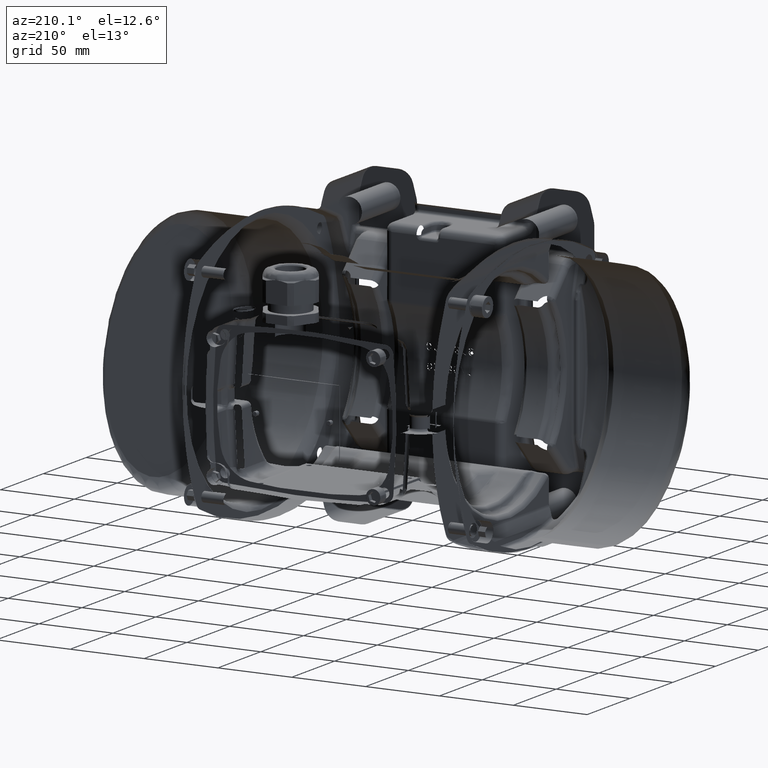
[diagram: clean part render]
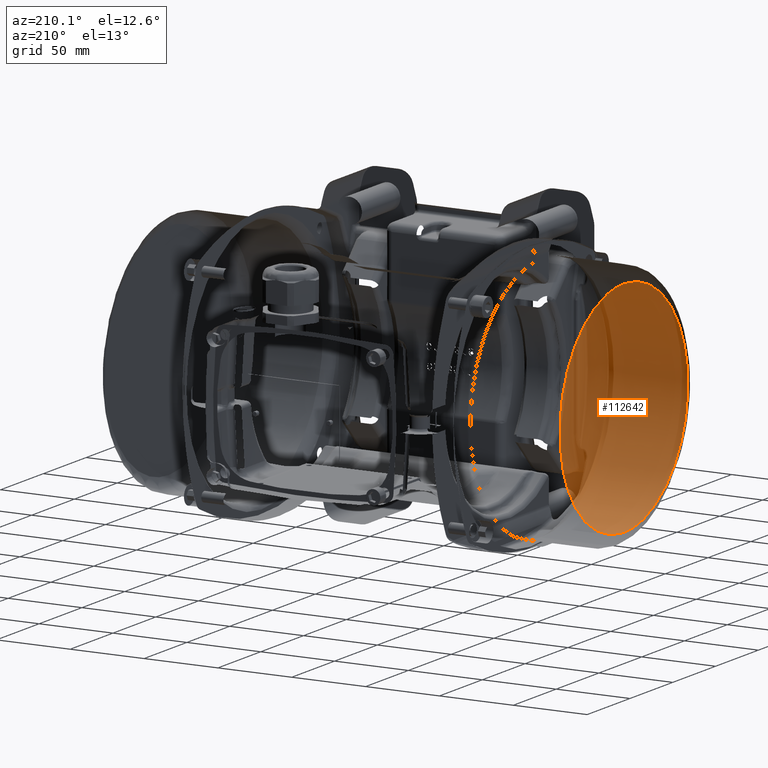
[diagram: same view with one face highlighted and labeled with its STEP entity id]
A machine part, auxiliary view. The second image highlights one B-rep face of the part: STEP entity #112642.
In plain terms, the highlighted planar face has unit normal (1, -0, 0).
Its self-contained STEP definition (entity closure, byte-faithful):
#6596 = CARTESIAN_POINT ( 'NONE',  ( -150.3471756244535100, -43.57026878890045700, 61.44428219647824800 ) ) ;
#7482 = CARTESIAN_POINT ( 'NONE',  ( -150.3471756244534600, -34.13444421374722300, -67.02876972792424200 ) ) ;
#7990 = CARTESIAN_POINT ( 'NONE',  ( -150.3471756244534600, 73.62789687501116000, 2.480561451402226900 ) ) ;
#8445 = CARTESIAN_POINT ( 'NONE',  ( -150.3471756244534800, 15.90446758656009200, -72.78669528399093700 ) ) ;
#8864 = CARTESIAN_POINT ( 'NONE',  ( -150.3471756244534800, 22.93351098219302000, 70.78033564868863400 ) ) ;
#8911 = CARTESIAN_POINT ( 'NONE',  ( -150.3471756244534300, 62.40976491365351800, -39.44945388104909500 ) ) ;
#9286 = CARTESIAN_POINT ( 'NONE',  ( -150.3471756244535100, -27.40696877252584000, -69.94632381857914500 ) ) ;
#9759 = CARTESIAN_POINT ( 'NONE',  ( -150.3471756244535100, 15.88623668802642500, 72.79083527223660600 ) ) ;
#15699 = CARTESIAN_POINT ( 'NONE',  ( -150.3471756244535100, -13.23460183251267900, 73.74355082529793000 ) ) ;
#16135 = CARTESIAN_POINT ( 'NONE',  ( -150.3471756244535400, -61.80640505935817000, 43.55766305996982600 ) ) ;
#16580 = CARTESIAN_POINT ( 'NONE',  ( -150.3471756244535700, -57.24808075905810500, 49.29716506628857100 ) ) ;
#17036 = CARTESIAN_POINT ( 'NONE',  ( -150.3471756244535700, -31.89125480895147600, 68.08930144735957400 ) ) ;
#18001 = CARTESIAN_POINT ( 'NONE',  ( -150.3471756244534800, 25.26490478286153900, -69.94629435113029100 ) ) ;
#18900 = CARTESIAN_POINT ( 'NONE',  ( -150.3471756244535100, 42.47374251493305800, -60.74474185799483900 ) ) ;
#19347 = CARTESIAN_POINT ( 'NONE',  ( -150.3471756244535100, 73.50675934830717000, 4.921631787828156100 ) ) ;
#20218 = CARTESIAN_POINT ( 'NONE',  ( -150.3471756244534800, -1.071020629450054200, 74.70000019073479800 ) ) ;
#23927 = ORIENTED_EDGE ( 'NONE', *, *, #30159, .T. ) ;
#27042 = CARTESIAN_POINT ( 'NONE',  ( -150.3471756244535100, -3.515160993677671500, 74.69996439014153100 ) ) ;
#27485 = CARTESIAN_POINT ( 'NONE',  ( -150.3471756244534600, -71.85260607888295700, -24.00033018609266500 ) ) ;
#27940 = CARTESIAN_POINT ( 'NONE',  ( -150.3471756244535100, -25.07619180655780900, 70.78017921209715300 ) ) ;
#28393 = CARTESIAN_POINT ( 'NONE',  ( -150.3471756244534800, -38.45349402382608900, -64.71932841074591600 ) ) ;
#28466 = CARTESIAN_POINT ( 'NONE',  ( -150.3471756244534800, 71.13050600664608700, -19.31296322747903800 ) ) ;
#28842 = CARTESIAN_POINT ( 'NONE',  ( -150.3471756244534800, -50.36463991996734500, -56.17988753662083200 ) ) ;
#28911 = CARTESIAN_POINT ( 'NONE',  ( -150.3471756244534600, 71.70750837600334600, 17.00969958026446300 ) ) ;
#30159 = EDGE_CURVE ( 'NONE', #122591, #76105, #45014, .T. ) ;
#33268 = CARTESIAN_POINT ( 'NONE',  ( -150.3471756244535100, 62.38081776108886300, 39.49583255524552100 ) ) ;
#36586 = CARTESIAN_POINT ( 'NONE',  ( -150.3471756244535400, -64.52283004988642300, 39.49594026374076300 ) ) ;
#37477 = CARTESIAN_POINT ( 'NONE',  ( -150.3471756244535100, -75.65314359812141700, -4.851369600473231200 ) ) ;
#37934 = CARTESIAN_POINT ( 'NONE',  ( -150.3471756244534800, -69.16016264045437400, -30.82106798906794200 ) ) ;
#38372 = CARTESIAN_POINT ( 'NONE',  ( -150.3471756244535400, -40.52063307612296900, 63.48063486553305500 ) ) ;
#38811 = CARTESIAN_POINT ( 'NONE',  ( -150.3471756244534600, -61.83639488033547600, -43.51597630048426900 ) ) ;
#38881 = CARTESIAN_POINT ( 'NONE',  ( -150.3471756244534800, 36.31148063656019100, -64.71935411461478800 ) ) ;
#39346 = CARTESIAN_POINT ( 'NONE',  ( -150.3471756244535100, 72.67562640127741200, -12.14486029854084300 ) ) ;
#40169 = CARTESIAN_POINT ( 'NONE',  ( -150.3471756244534600, -57.27428056434657600, -49.26702425271556500 ) ) ;
#40197 = CARTESIAN_POINT ( 'NONE',  ( -150.3471756244535100, 18.25494012237277600, 72.19808291103638000 ) ) ;
#40235 = CARTESIAN_POINT ( 'NONE',  ( -150.3471756244535100, 29.78230061309247700, -68.07453806243849200 ) ) ;
#40677 = CARTESIAN_POINT ( 'NONE',  ( -150.3471756244534800, 50.03394123603269600, -54.53758354772094200 ) ) ;
#41697 = CARTESIAN_POINT ( 'NONE',  ( -150.3471756244534800, 29.74813433049493100, 68.08970931772142900 ) ) ;
#42002 = CARTESIAN_POINT ( 'NONE',  ( -150.3471756244535400, 3.811914087777475300, 74.58028043652004200 ) ) ;
#44292 = AXIS2_PLACEMENT_3D ( 'NONE', #97815, #108710, #67054 ) ;
#45014 = B_SPLINE_CURVE_WITH_KNOTS ( 'NONE', 3,
 ( #59752, #102733, #122700, #102282, #80085, #8445, #121804, #59306, #18001, #40235, #131756, #38881, #133546, #18900, #91399, #81430, #40677, #48914, #60642, #132206, #100938, #8911, #133086, #61092, #71502, #69717, #121357, #28466, #111400, #39346, #49365, #71055, #70168, #7990, #19347, #91854, #80526, #28911, #132641, #101391, #111836, #60198, #130761, #61433, #33268, #98884, #60831, #106502, #117830, #99623, #91423, #55164, #120779, #93079, #66772, #76248, #64594, #120970, #41697, #108443, #8864, #40197, #9759, #82282, #82723, #42002, #83185, #20218 ),
 .UNSPECIFIED., .F., .F.,
 ( 4, 2, 2, 2, 2, 2, 2, 2, 2, 2, 2, 2, 2, 2, 2, 2, 2, 2, 2, 2, 2, 2, 2, 2, 2, 2, 2, 2, 2, 2, 2, 2, 2, 4 ),
 ( 0.0000000000000000000, 0.03125000000000002800, 0.06250000000000004200, 0.09375000000000004200, 0.1250000000000000300, 0.1562500000000000300, 0.1875000000000000300, 0.2187500000000000300, 0.2500000000000000000, 0.2812500000000000000, 0.3125000000000000000, 0.3437500000000000000, 0.3750000000000000600, 0.4062500000000000000, 0.4375000000000000600, 0.4687500000000000600, 0.5000000000000001100, 0.5312500000000001100, 0.5625000000000001100, 0.5937500000000002200, 0.6250000000000002200, 0.6562500000000002200, 0.6875000000000002200, 0.7187500000000003300, 0.7500000000000003300, 0.7812500000000003300, 0.8125000000000003300, 0.8281250000000004400, 0.8437500000000004400, 0.8750000000000003300, 0.9062500000000002200, 0.9375000000000001100, 0.9687500000000001100, 1.000000000000000000 ),
 .UNSPECIFIED. ) ;
#47936 = CARTESIAN_POINT ( 'NONE',  ( -150.3471756244535700, -38.42233523442745700, 64.73722334729551200 ) ) ;
#48381 = CARTESIAN_POINT ( 'NONE',  ( -150.3471756244535100, -47.49981030961942700, 58.53105112242233300 ) ) ;
#48841 = CARTESIAN_POINT ( 'NONE',  ( -150.3471756244534800, -46.53374875836494300, 59.28474089386366300 ) ) ;
#48914 = CARTESIAN_POINT ( 'NONE',  ( -150.3471756244534600, 53.49078334486332400, -51.07915144214247500 ) ) ;
#49365 = CARTESIAN_POINT ( 'NONE',  ( -150.3471756244534800, 73.03322121015371200, -9.725821502165466400 ) ) ;
#50170 = CARTESIAN_POINT ( 'NONE',  ( -150.3471756244534600, -40.55054139748417400, -63.46209823550363900 ) ) ;
#55164 = CARTESIAN_POINT ( 'NONE',  ( -150.3471756244534600, 44.40952597864559700, 59.30894314932682900 ) ) ;
#57066 = PLANE ( 'NONE',  #44292 ) ;
#57733 = FACE_OUTER_BOUND ( 'NONE', #124854, .T. ) ;
#57890 = CARTESIAN_POINT ( 'NONE',  ( -150.3471756244535400, -73.25376232066442100, 19.38165066433619500 ) ) ;
#58334 = CARTESIAN_POINT ( 'NONE',  ( -150.3471756244534600, -73.86578231811303400, -16.94098133061920200 ) ) ;
#58789 = CARTESIAN_POINT ( 'NONE',  ( -150.3471756244535400, -69.13159568833852100, 30.88445766976616000 ) ) ;
#59306 = CARTESIAN_POINT ( 'NONE',  ( -150.3471756244534300, 22.96287437127685700, -70.77017732494479700 ) ) ;
#59752 = CARTESIAN_POINT ( 'NONE',  ( -150.3471756244534800, -1.071020629450024000, -74.70000019073499700 ) ) ;
#60125 = CARTESIAN_POINT ( 'NONE',  ( -150.3471756244535100, -65.80806727870070500, -37.35183619289406900 ) ) ;
#60162 = CARTESIAN_POINT ( 'NONE',  ( -150.3471756244534800, -1.071020629450054200, 74.70000019073479800 ) ) ;
#60198 = CARTESIAN_POINT ( 'NONE',  ( -150.3471756244534600, 66.99004128235439700, 30.88337758961602500 ) ) ;
#60642 = CARTESIAN_POINT ( 'NONE',  ( -150.3471756244534600, 55.13219235608240600, -49.26702502662043800 ) ) ;
#60831 = CARTESIAN_POINT ( 'NONE',  ( -150.3471756244534600, 58.20914995928582400, 45.51832767532319200 ) ) ;
#61031 = CARTESIAN_POINT ( 'NONE',  ( -150.3471756244534800, -10.83195723834246300, -74.09968913117245400 ) ) ;
#61092 = CARTESIAN_POINT ( 'NONE',  ( -150.3471756244534800, 65.97339832806120800, -33.03166230047850900 ) ) ;
#61433 = CARTESIAN_POINT ( 'NONE',  ( -150.3471756244534600, 63.63723654337764700, 37.40185967683103700 ) ) ;
#61469 = CARTESIAN_POINT ( 'NONE',  ( -150.3471756244534600, -52.17602359317734100, -54.53759324581546500 ) ) ;
#64594 = CARTESIAN_POINT ( 'NONE',  ( -150.3471756244535100, 35.19841938277340200, 65.31494802914775700 ) ) ;
#64688 = B_SPLINE_CURVE_WITH_KNOTS ( 'NONE', 3,
 ( #89988, #27042, #79112, #78221, #15699, #109092, #98631, #27940, #120844, #17036, #77781, #47936, #38372, #6596, #110887, #48841, #48381, #130800, #131238, #78675, #16580, #121293, #16135, #36586, #120400, #88640, #58789, #89539, #130353, #57890, #129902, #69196, #99075, #88203, #119944, #99530, #37477, #89085, #109980, #58334, #68753, #27485, #99968, #37934, #133915, #60125, #80463, #38811, #70990, #40169, #71434, #61469, #28842, #90429, #132134, #50170, #28393, #7482, #90873, #9286, #101326, #132572, #123524, #121740, #61031, #122628, #122190, #80018 ),
 .UNSPECIFIED., .F., .F.,
 ( 4, 2, 2, 2, 2, 2, 2, 2, 2, 2, 2, 2, 2, 2, 2, 2, 2, 2, 2, 2, 2, 2, 2, 2, 2, 2, 2, 2, 2, 2, 2, 2, 2, 4 ),
 ( 0.0000000000000000000, 0.03124999999999997200, 0.06249999999999994400, 0.09374999999999991700, 0.1249999999999998900, 0.1562499999999998600, 0.1874999999999998300, 0.2031249999999998300, 0.2187499999999998100, 0.2499999999999998300, 0.2812499999999998300, 0.3124999999999998900, 0.3437499999999998900, 0.3749999999999999400, 0.4062499999999999400, 0.4375000000000000000, 0.4687500000000000000, 0.5000000000000000000, 0.5312500000000000000, 0.5624999999999998900, 0.5937499999999998900, 0.6249999999999998900, 0.6562499999999998900, 0.6874999999999997800, 0.7187499999999998900, 0.7500000000000000000, 0.7812500000000001100, 0.8125000000000001100, 0.8437500000000001100, 0.8750000000000001100, 0.9062500000000001100, 0.9375000000000000000, 0.9687500000000000000, 1.000000000000000000 ),
 .UNSPECIFIED. ) ;
#66772 = CARTESIAN_POINT ( 'NONE',  ( -150.3471756244534800, 38.36245025390161300, 63.45531530830127300 ) ) ;
#67054 = DIRECTION ( 'NONE',  ( 2.695807000000000100E-016, 1.000000000000000000, 0.0000000000000000000 ) ) ;
#67526 = CARTESIAN_POINT ( 'NONE',  ( -150.3471756244534800, -1.071020629450024000, -74.70000019073499700 ) ) ;
#68753 = CARTESIAN_POINT ( 'NONE',  ( -150.3471756244534800, -73.27247517088940800, -19.31307769609334100 ) ) ;
#69196 = CARTESIAN_POINT ( 'NONE',  ( -150.3471756244535700, -74.80635525152742100, 12.21455496897776200 ) ) ;
#69717 = CARTESIAN_POINT ( 'NONE',  ( -150.3471756244534600, 68.88779578657600700, -26.30276297350184200 ) ) ;
#70168 = CARTESIAN_POINT ( 'NONE',  ( -150.3471756244535100, 73.63004741515783300, -2.409810714293656000 ) ) ;
#70990 = CARTESIAN_POINT ( 'NONE',  ( -150.3471756244534600, -60.38031848529730200, -45.48019775241922200 ) ) ;
#71055 = CARTESIAN_POINT ( 'NONE',  ( -150.3471756244534800, 73.51111252201033600, -4.851632669888529000 ) ) ;
#71434 = CARTESIAN_POINT ( 'NONE',  ( -150.3471756244534600, -55.63278350551834000, -51.07914174404811500 ) ) ;
#71502 = CARTESIAN_POINT ( 'NONE',  ( -150.3471756244534600, 67.01806421256316100, -30.82111219673158300 ) ) ;
#74474 = EDGE_CURVE ( 'NONE', #76105, #122591, #64688, .T. ) ;
#76105 = VERTEX_POINT ( 'NONE', #60162 ) ;
#76248 = CARTESIAN_POINT ( 'NONE',  ( -150.3471756244535100, 36.26477285816241600, 64.71148949573542100 ) ) ;
#77781 = CARTESIAN_POINT ( 'NONE',  ( -150.3471756244535400, -34.09904749375353800, 67.04595461630268000 ) ) ;
#78221 = CARTESIAN_POINT ( 'NONE',  ( -150.3471756244535100, -10.81855510508883400, 74.10166239316495800 ) ) ;
#78675 = CARTESIAN_POINT ( 'NONE',  ( -150.3471756244535100, -55.60726704563522600, 51.10659156751542300 ) ) ;
#79112 = CARTESIAN_POINT ( 'NONE',  ( -150.3471756244535100, -5.954058794396146900, 74.58023429870441100 ) ) ;
#80018 = CARTESIAN_POINT ( 'NONE',  ( -150.3471756244534800, -1.071020629450024000, -74.70000019073499700 ) ) ;
#80085 = CARTESIAN_POINT ( 'NONE',  ( -150.3471756244534800, 11.10865963548970100, -73.74090028955396300 ) ) ;
#80463 = CARTESIAN_POINT ( 'NONE',  ( -150.3471756244535100, -64.55176940930577700, -39.44944424625195700 ) ) ;
#80526 = CARTESIAN_POINT ( 'NONE',  ( -150.3471756244535100, 72.66421355156067800, 12.21487459702272500 ) ) ;
#81430 = CARTESIAN_POINT ( 'NONE',  ( -150.3471756244534600, 48.22263201761460000, -56.17990648215000200 ) ) ;
#82282 = CARTESIAN_POINT ( 'NONE',  ( -150.3471756244534600, 11.09222405521097000, 73.74365418940355700 ) ) ;
#82723 = CARTESIAN_POINT ( 'NONE',  ( -150.3471756244535100, 8.676617293907328900, 74.10161625534934200 ) ) ;
#83185 = CARTESIAN_POINT ( 'NONE',  ( -150.3471756244535100, 1.373485314346654600, 74.69996438478671100 ) ) ;
#88203 = CARTESIAN_POINT ( 'NONE',  ( -150.3471756244535700, -75.64875662596431000, 4.922439843981464900 ) ) ;
#88640 = CARTESIAN_POINT ( 'NONE',  ( -150.3471756244535700, -68.08674682153110800, 33.09042577124896700 ) ) ;
#89085 = CARTESIAN_POINT ( 'NONE',  ( -150.3471756244536000, -75.17527265184261900, -9.726084571580953400 ) ) ;
#89539 = CARTESIAN_POINT ( 'NONE',  ( -150.3471756244535400, -71.00421262408811200, 26.37008551772963800 ) ) ;
#89988 = CARTESIAN_POINT ( 'NONE',  ( -150.3471756244534800, -1.071020629450054200, 74.70000019073479800 ) ) ;
#90429 = CARTESIAN_POINT ( 'NONE',  ( -150.3471756244534600, -46.57931395806586700, -59.28778158914218500 ) ) ;
#90873 = CARTESIAN_POINT ( 'NONE',  ( -150.3471756244534800, -31.92431914122796500, -68.07450859498972300 ) ) ;
#91399 = CARTESIAN_POINT ( 'NONE',  ( -150.3471756244534600, 44.43723934261858900, -59.28776264361290800 ) ) ;
#91423 = CARTESIAN_POINT ( 'NONE',  ( -150.3471756244535100, 48.19883388937758900, 56.20047357236013900 ) ) ;
#91854 = CARTESIAN_POINT ( 'NONE',  ( -150.3471756244534600, 73.02431335349183400, 9.796010053210029200 ) ) ;
#93079 = CARTESIAN_POINT ( 'NONE',  ( -150.3471756244535100, 39.39514049936028800, 62.80186998079398100 ) ) ;
#97815 = CARTESIAN_POINT ( 'NONE',  ( -150.3471756244534800, -77.26512282399700400, -74.70010019073249900 ) ) ;
#98631 = CARTESIAN_POINT ( 'NONE',  ( -150.3471756244535100, -20.39634181580819200, 72.19823934762784700 ) ) ;
#98884 = CARTESIAN_POINT ( 'NONE',  ( -150.3471756244534600, 59.66433483035547900, 43.55777076846550200 ) ) ;
#99075 = CARTESIAN_POINT ( 'NONE',  ( -150.3471756244535100, -75.16639859363522200, 9.795201997056528500 ) ) ;
#99530 = CARTESIAN_POINT ( 'NONE',  ( -150.3471756244535100, -75.77212446040292100, -2.409535227638204300 ) ) ;
#99623 = CARTESIAN_POINT ( 'NONE',  ( -150.3471756244534600, 50.00860210652199800, 54.56108671301795700 ) ) ;
#99968 = CARTESIAN_POINT ( 'NONE',  ( -150.3471756244534800, -71.02977987648478100, -26.30280718116566900 ) ) ;
#100938 = CARTESIAN_POINT ( 'NONE',  ( -150.3471756244534600, 59.69431685818764100, -43.51596666568690400 ) ) ;
#101326 = CARTESIAN_POINT ( 'NONE',  ( -150.3471756244534800, -25.10489866491904100, -70.77014505152968100 ) ) ;
#101391 = CARTESIAN_POINT ( 'NONE',  ( -150.3471756244534800, 69.68680809403187500, 24.06897799368196200 ) ) ;
#102282 = CARTESIAN_POINT ( 'NONE',  ( -150.3471756244534300, 8.690104279239806200, -74.09970656087506300 ) ) ;
#102733 = CARTESIAN_POINT ( 'NONE',  ( -150.3471756244534600, 1.374431218441733100, -74.69996425810479900 ) ) ;
#106502 = CARTESIAN_POINT ( 'NONE',  ( -150.3471756244534800, 55.10574659509654100, 49.29757809593576900 ) ) ;
#108443 = CARTESIAN_POINT ( 'NONE',  ( -150.3471756244534800, 25.23374183017228800, 69.95817850436196700 ) ) ;
#108710 = DIRECTION ( 'NONE',  ( 1.000000000000000000, -2.695807000000000100E-016, 2.273863213813650200E-016 ) ) ;
#109092 = CARTESIAN_POINT ( 'NONE',  ( -150.3471756244535100, -18.02794142852494000, 72.79093863634223300 ) ) ;
#109980 = CARTESIAN_POINT ( 'NONE',  ( -150.3471756244535400, -74.81764516880942000, -12.14478906672682300 ) ) ;
#110887 = CARTESIAN_POINT ( 'NONE',  ( -150.3471756244535400, -44.56958287783035600, 60.74086024674802100 ) ) ;
#111400 = CARTESIAN_POINT ( 'NONE',  ( -150.3471756244535100, 71.72371856784505400, -16.94091009880497000 ) ) ;
#111836 = CARTESIAN_POINT ( 'NONE',  ( -150.3471756244535100, 68.86168451227199200, 26.37116559787976300 ) ) ;
#112642 = ADVANCED_FACE ( 'NONE', ( #57733 ), #57066, .T. ) ;
#117830 = CARTESIAN_POINT ( 'NONE',  ( -150.3471756244535100, 53.46611052918602500, 51.10565668346784200 ) ) ;
#119944 = CARTESIAN_POINT ( 'NONE',  ( -150.3471756244535100, -75.76990234756553400, 2.480285964746600200 ) ) ;
#120400 = CARTESIAN_POINT ( 'NONE',  ( -150.3471756244535400, -65.77892132099418600, 37.40244998392282800 ) ) ;
#120779 = CARTESIAN_POINT ( 'NONE',  ( -150.3471756244535400, 42.44476587850347500, 60.76545929690156800 ) ) ;
#120844 = CARTESIAN_POINT ( 'NONE',  ( -150.3471756244535100, -27.37470386951593700, 69.95858637472383600 ) ) ;
#120970 = CARTESIAN_POINT ( 'NONE',  ( -150.3471756244534800, 31.95911155002440700, 67.04487088710175200 ) ) ;
#121293 = CARTESIAN_POINT ( 'NONE',  ( -150.3471756244535700, -60.35089831312450300, 45.51874070497044000 ) ) ;
#121357 = CARTESIAN_POINT ( 'NONE',  ( -150.3471756244534600, 69.71049272532630400, -24.00044465470676500 ) ) ;
#121740 = CARTESIAN_POINT ( 'NONE',  ( -150.3471756244534600, -13.25071248398274000, -73.74093461218632200 ) ) ;
#121804 = CARTESIAN_POINT ( 'NONE',  ( -150.3471756244534800, 18.27614088700754300, -72.19229873238758400 ) ) ;
#122190 = CARTESIAN_POINT ( 'NONE',  ( -150.3471756244534800, -3.516837758025206800, -74.69996425273745900 ) ) ;
#122591 = VERTEX_POINT ( 'NONE', #67526 ) ;
#122628 = CARTESIAN_POINT ( 'NONE',  ( -150.3471756244534800, -5.958188505518762700, -74.57989485322541200 ) ) ;
#122700 = CARTESIAN_POINT ( 'NONE',  ( -150.3471756244534600, 3.815958946821402800, -74.57987742352278800 ) ) ;
#123434 = ORIENTED_EDGE ( 'NONE', *, *, #74474, .T. ) ;
#123524 = CARTESIAN_POINT ( 'NONE',  ( -150.3471756244534800, -18.04649725586686400, -72.78666096135866300 ) ) ;
#124854 = EDGE_LOOP ( 'NONE', ( #23927, #123434 ) ) ;
#129902 = CARTESIAN_POINT ( 'NONE',  ( -150.3471756244535100, -73.84944919383656300, 17.01001920830923500 ) ) ;
#130353 = CARTESIAN_POINT ( 'NONE',  ( -150.3471756244535100, -71.82838724709097300, 24.07037511317858500 ) ) ;
#130761 = CARTESIAN_POINT ( 'NONE',  ( -150.3471756244535100, 65.94434908134753900, 33.09101607834115600 ) ) ;
#130800 = CARTESIAN_POINT ( 'NONE',  ( -150.3471756244534800, -50.33904295949638900, 56.20202283768575300 ) ) ;
#131238 = CARTESIAN_POINT ( 'NONE',  ( -150.3471756244535100, -52.15152810787289200, 54.56015182897034100 ) ) ;
#131756 = CARTESIAN_POINT ( 'NONE',  ( -150.3471756244534600, 31.99237508321298800, -67.02874402405531400 ) ) ;
#132134 = CARTESIAN_POINT ( 'NONE',  ( -150.3471756244534600, -44.61575284509844200, -60.74471932128125900 ) ) ;
#132206 = CARTESIAN_POINT ( 'NONE',  ( -150.3471756244534300, 58.23832417576158300, -45.48019697851416500 ) ) ;
#132572 = CARTESIAN_POINT ( 'NONE',  ( -150.3471756244534800, -20.41819911116518000, -72.19233100580277100 ) ) ;
#132641 = CARTESIAN_POINT ( 'NONE',  ( -150.3471756244534600, 71.11125895592329000, 19.38304778383300000 ) ) ;
#133086 = CARTESIAN_POINT ( 'NONE',  ( -150.3471756244534600, 63.66599713676758700, -37.35181426303039800 ) ) ;
#133546 = CARTESIAN_POINT ( 'NONE',  ( -150.3471756244534600, 38.40846920984935100, -63.46207569878998800 ) ) ;
#133915 = CARTESIAN_POINT ( 'NONE',  ( -150.3471756244534800, -68.11541070392830500, -33.03164037061494400 ) ) ;